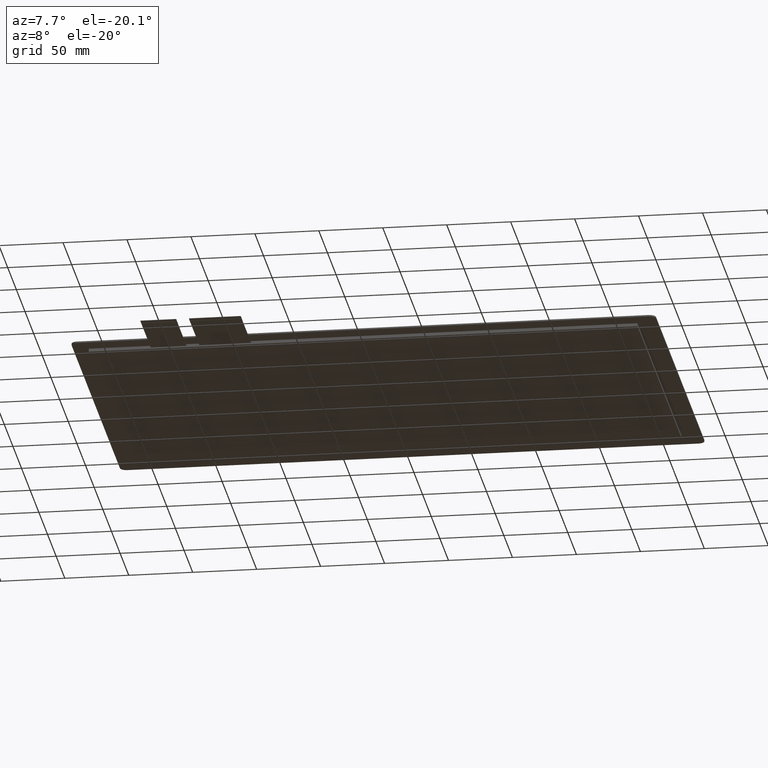
[diagram: clean part render]
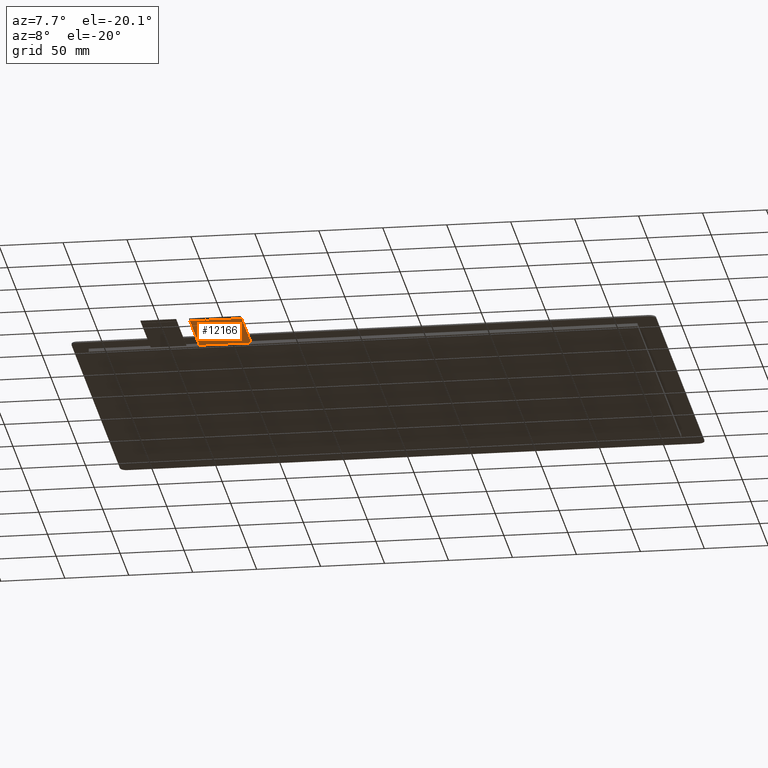
[diagram: same view with one face highlighted and labeled with its STEP entity id]
A machine part, auxiliary view. The second image highlights one B-rep face of the part: STEP entity #12166.
In plain terms, the highlighted planar face has unit normal (0, 0, -1).
Its self-contained STEP definition (entity closure, byte-faithful):
#606=PLANE('',#12780);
#1186=FACE_OUTER_BOUND('',#1770,.T.);
#1770=EDGE_LOOP('',(#11471,#11472,#11473,#11474));
#3441=LINE('',#19036,#5157);
#3454=LINE('',#19061,#5170);
#3463=LINE('',#19080,#5179);
#3467=LINE('',#19087,#5183);
#5157=VECTOR('',#15573,10.);
#5170=VECTOR('',#15592,10.);
#5179=VECTOR('',#15611,10.);
#5183=VECTOR('',#15619,10.);
#6349=VERTEX_POINT('',#19033);
#6350=VERTEX_POINT('',#19035);
#6359=VERTEX_POINT('',#19059);
#6364=VERTEX_POINT('',#19079);
#8053=EDGE_CURVE('',#6350,#6349,#3441,.T.);
#8066=EDGE_CURVE('',#6349,#6359,#3454,.T.);
#8075=EDGE_CURVE('',#6364,#6350,#3463,.T.);
#8079=EDGE_CURVE('',#6364,#6359,#3467,.T.);
#11471=ORIENTED_EDGE('',*,*,#8053,.T.);
#11472=ORIENTED_EDGE('',*,*,#8066,.T.);
#11473=ORIENTED_EDGE('',*,*,#8079,.F.);
#11474=ORIENTED_EDGE('',*,*,#8075,.T.);
#12166=ADVANCED_FACE('',(#1186),#606,.T.);
#12780=AXIS2_PLACEMENT_3D('',#19086,#15617,#15618);
#15573=DIRECTION('',(-1.,-8.77213254024815E-16,0.));
#15592=DIRECTION('',(-2.96059473233375E-16,1.,0.));
#15611=DIRECTION('',(-5.9211894646675E-16,-1.,0.));
#15617=DIRECTION('center_axis',(0.,0.,-1.));
#15618=DIRECTION('ref_axis',(-1.,0.,0.));
#15619=DIRECTION('',(-1.,-1.24220758000017E-16,0.));
#19033=CARTESIAN_POINT('',(-129.83,-185.5,-1.35));
#19035=CARTESIAN_POINT('',(-89.3299999999999,-185.5,-1.35));
#19036=CARTESIAN_POINT('',(-99.4549999999999,-185.5,-1.35));
#19059=CARTESIAN_POINT('',(-129.83,-130.5,-1.35));
#19061=CARTESIAN_POINT('',(-129.83,-130.5,-1.35));
#19079=CARTESIAN_POINT('',(-89.3299999999999,-130.5,-1.35));
#19080=CARTESIAN_POINT('',(-89.3299999999999,-190.5,-1.35));
#19086=CARTESIAN_POINT('Origin',(-109.58,-160.5,-1.35));
#19087=CARTESIAN_POINT('',(51.5600000000001,-130.5,-1.35));